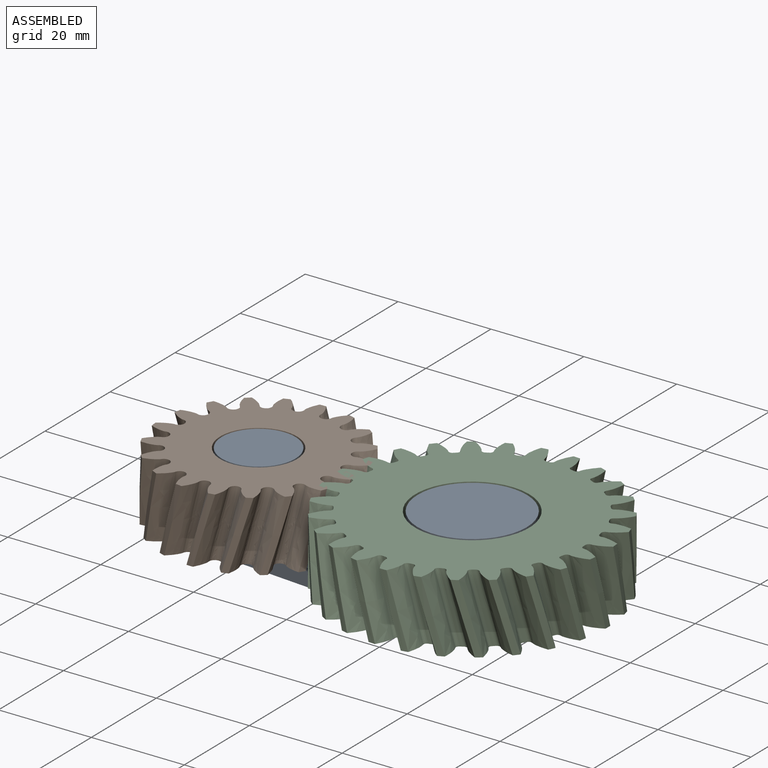
[diagram: assembled view]
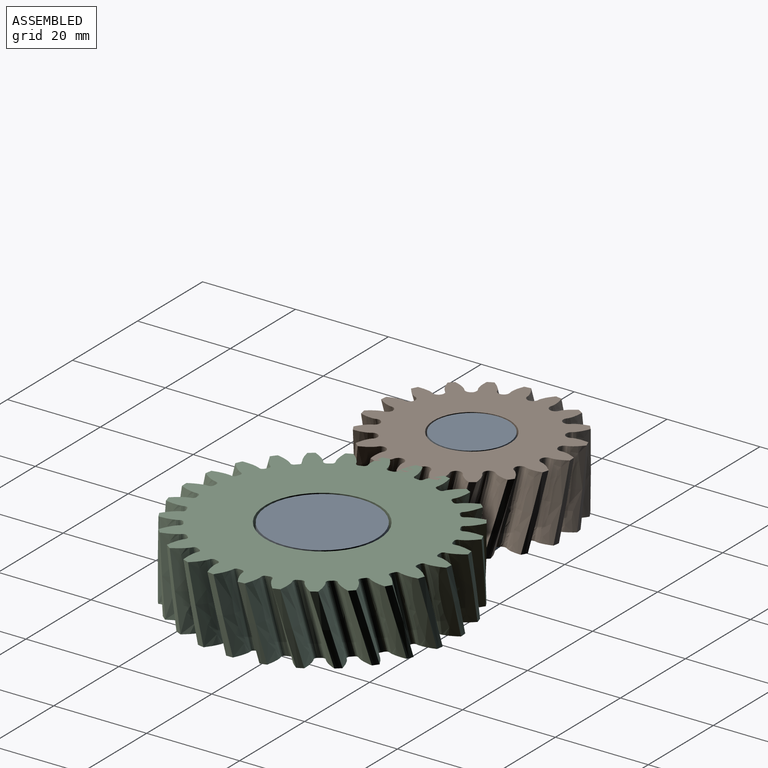
[diagram: assembled view, second angle]
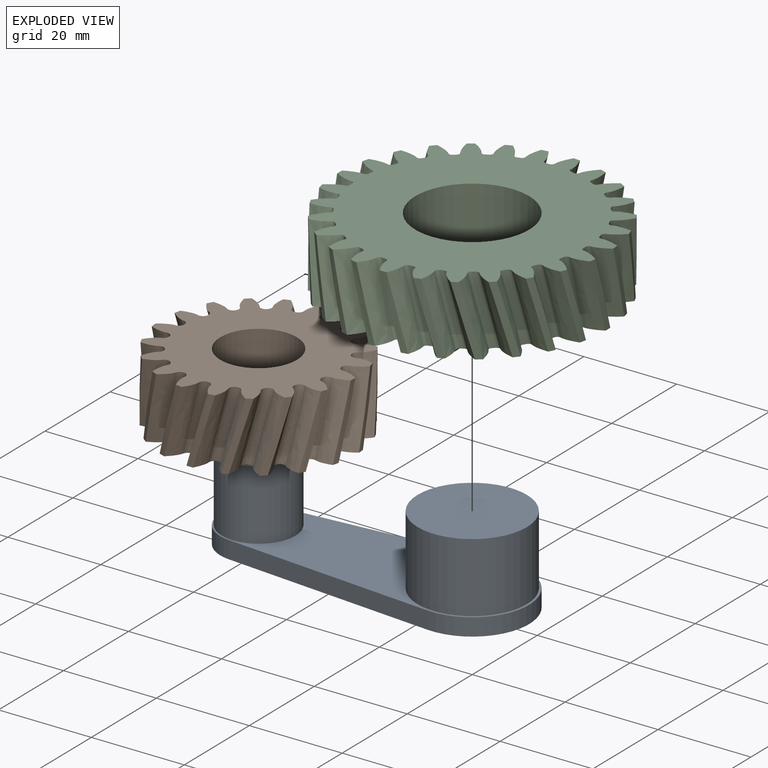
[diagram: exploded view]
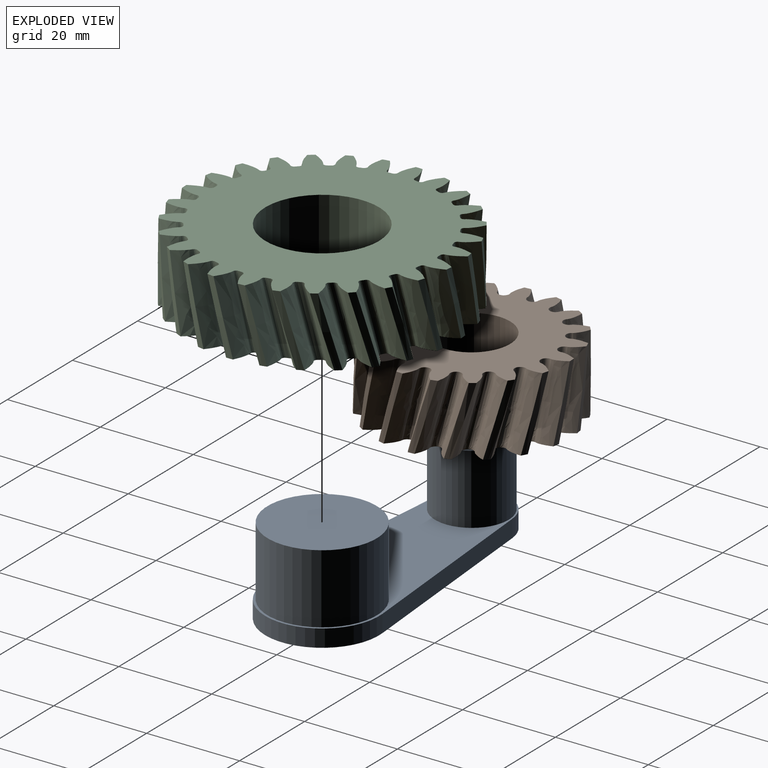
[diagram: exploded view, second angle]
ASSEMBLY  parts=3 mates=4
PART A: 10 faces, bbox 66.5x24.5x18.8 mm
  f0: cylinder r=7.92mm len=15.84mm, axis (0,0,-1), area 746.4mm2, adj f1,f9
  f1: plane 15.84x15.84mm, normal (0,0,1), area 197.1mm2, adj f0
  f2: cylinder r=11.76mm len=23.52mm, axis (0,0,-1), area 1108.4mm2, adj f3,f9
  f3: plane 23.52x23.52mm, normal (0,0,1), area 434.5mm2, adj f2
  f4: plane 45.65x3.99mm, normal (-0.09,-1,0), area 171.8mm2, adj f5,f7,f8,f9
  f5: cylinder r=12.25mm len=24.5mm, axis (0,0,1), area 152.3mm2, adj f4,f6,f8,f9
  f6: plane 45.65x3.99mm, normal (-0.09,1,0), area 171.8mm2, adj f5,f7,f8,f9
  f7: cylinder r=8.25mm len=16.44mm, axis (0,0,1), area 91.8mm2, adj f4,f6,f8,f9
  f8: plane 66.5x24.5mm, normal (0,0,-1), area 1289.2mm2, adj f4,f5,f6,f7
  f9: plane 66.5x24.5mm, normal (0,0,1), area 657.7mm2, adj f0,f2,f4,f5,f6,f7
PART B: 98 faces, bbox 42.3x42.3x17.2 mm
  f0: plane 41.99x41.86mm, normal (0,0,-1), area 900.9mm2, adj f2,f3,f4,f5,f6,f7,f8,f9
  f1: plane 41.97x41.95mm, normal (0,0,1), area 900.9mm2, adj f2,f3,f4,f5,f6,f7,f8,f9
  f2: bspline ~17.14x4.98mm, area 30.6mm2, adj f0,f1,f6,f93
  f3: bspline ~17.14x5.28mm, area 30.6mm2, adj f0,f1,f4,f7
  f4: bspline ~17.14x6.1mm, area 52.9mm2, adj f0,f1,f3,f5
  f5: bspline ~17.14x6.38mm, area 20.7mm2, adj f0,f1,f4,f6
  f6: bspline ~17.14x5.37mm, area 52.9mm2, adj f0,f1,f2,f5
  f7: bspline ~17.14x5.38mm, area 30.6mm2, adj f0,f1,f3,f11
  f8: bspline ~17.14x4.79mm, area 30.6mm2, adj f0,f1,f9,f12
  f9: bspline ~17.14x5.09mm, area 52.9mm2, adj f0,f1,f8,f10
  f10: bspline ~17.14x6.29mm, area 20.7mm2, adj f0,f1,f9,f11
  f11: bspline ~17.14x6.32mm, area 52.9mm2, adj f0,f1,f7,f10
  f12: bspline ~17.14x5.39mm, area 30.6mm2, adj f0,f1,f8,f16
  f13: bspline ~17.14x4.34mm, area 30.6mm2, adj f0,f1,f14,f17
  f14: bspline ~17.14x5.93mm, area 52.9mm2, adj f0,f1,f13,f15
  f15: bspline ~17.14x5.51mm, area 20.7mm2, adj f0,f1,f14,f16
  f16: bspline ~17.14x6.7mm, area 52.9mm2, adj f0,f1,f12,f15
  f17: bspline ~17.14x4.81mm, area 30.6mm2, adj f0,f1,f13,f21
  f18: bspline ~17.14x5.18mm, area 30.6mm2, adj f0,f1,f19,f22
  f19: bspline ~17.14x6.62mm, area 52.9mm2, adj f0,f1,f18,f20
  f20: bspline ~17.14x4.92mm, area 20.7mm2, adj f0,f1,f19,f21
  f21: bspline ~15x5.93mm, area 52.9mm2, adj f0,f1,f17,f20
  f22: bspline ~17.14x4.36mm, area 30.6mm2, adj f0,f1,f18,f26
  f23: bspline ~15x4.96mm, area 30.6mm2, adj f0,f1,f24,f27
  f24: bspline ~17.14x6.59mm, area 52.9mm2, adj f0,f1,f23,f25
  f25: bspline ~17.14x5.99mm, area 20.7mm2, adj f0,f1,f24,f26
  f26: bspline ~17.14x5.31mm, area 52.9mm2, adj f0,f1,f22,f25
  f27: bspline ~17.14x5.12mm, area 30.6mm2, adj f0,f1,f23,f31
  f28: bspline ~17.14x5.21mm, area 30.6mm2, adj f0,f1,f29,f32
  f29: bspline ~17.14x5.86mm, area 52.9mm2, adj f0,f1,f28,f30
  f30: bspline ~17.14x6.42mm, area 20.7mm2, adj f0,f1,f29,f31
  f31: bspline ~17.14x5.63mm, area 52.9mm2, adj f0,f1,f27,f30
  f32: bspline ~17.14x5.44mm, area 30.6mm2, adj f0,f1,f28,f36
  f33: bspline ~17.14x4.58mm, area 30.6mm2, adj f0,f1,f34,f37
  f34: bspline ~17.14x4.99mm, area 52.9mm2, adj f0,f1,f33,f35
  f35: bspline ~17.14x6.15mm, area 20.7mm2, adj f0,f1,f34,f36
  f36: bspline ~15x5.94mm, area 52.9mm2, adj f0,f1,f32,f35
  f37: bspline ~17.14x5.3mm, area 30.6mm2, adj f0,f1,f33,f41
  f38: bspline ~17.14x4.6mm, area 30.6mm2, adj f0,f1,f39,f42
  f39: bspline ~17.14x6.17mm, area 52.9mm2, adj f0,f1,f38,f40
  f40: bspline ~17.14x5.22mm, area 20.7mm2, adj f0,f1,f39,f41
  f41: bspline ~17.14x6.68mm, area 52.9mm2, adj f0,f1,f37,f40
  f42: bspline ~17.14x4.58mm, area 30.6mm2, adj f0,f1,f38,f46
  f43: bspline ~15x4.87mm, area 30.6mm2, adj f0,f1,f44,f47
  f44: bspline ~17.14x6.68mm, area 52.9mm2, adj f0,f1,f43,f45
  f45: bspline ~17.14x5.24mm, area 20.7mm2, adj f0,f1,f44,f46
  f46: bspline ~17.14x6.15mm, area 52.9mm2, adj f0,f1,f42,f45
  f47: bspline ~17.14x4.6mm, area 30.6mm2, adj f0,f1,f43,f51
  f48: bspline ~17.14x5.44mm, area 30.6mm2, adj f0,f1,f49,f52
  f49: bspline ~17.14x6.47mm, area 52.9mm2, adj f0,f1,f48,f50
  f50: bspline ~17.14x6.17mm, area 20.7mm2, adj f0,f1,f49,f51
  f51: bspline ~17.14x4.96mm, area 52.9mm2, adj f0,f1,f47,f50
  f52: bspline ~17.14x5.22mm, area 30.6mm2, adj f0,f1,f48,f56
  f53: bspline ~15x4.46mm, area 30.6mm2, adj f0,f1,f54,f57
  f54: bspline ~17.14x5.61mm, area 52.9mm2, adj f0,f1,f53,f55
  f55: bspline ~17.14x6.42mm, area 20.7mm2, adj f0,f1,f54,f56
  f56: bspline ~15x5.34mm, area 52.9mm2, adj f0,f1,f52,f55
  f57: bspline ~17.14x5.46mm, area 30.6mm2, adj f0,f1,f53,f61
  f58: bspline ~17.14x4.34mm, area 30.6mm2, adj f0,f1,f59,f62
  f59: bspline ~17.14x5.34mm, area 52.9mm2, adj f0,f1,f58,f60
  f60: bspline ~17.14x5.98mm, area 20.7mm2, adj f0,f1,f59,f61
  f61: bspline ~17.14x6.6mm, area 52.9mm2, adj f0,f1,f57,f60
  f62: bspline ~17.14x5.17mm, area 30.6mm2, adj f0,f1,f58,f66
  f63: bspline ~17.14x4.83mm, area 30.6mm2, adj f0,f1,f64,f67
  f64: bspline ~17.14x6.36mm, area 52.9mm2, adj f0,f1,f63,f65
  f65: bspline ~17.14x4.89mm, area 20.7mm2, adj f0,f1,f64,f66
  f66: bspline ~15x6.14mm, area 52.9mm2, adj f0,f1,f62,f65
  f67: bspline ~17.14x4.32mm, area 30.6mm2, adj f0,f1,f63,f71
  f68: bspline ~17.14x5.39mm, area 30.6mm2, adj f0,f1,f69,f72
  f69: bspline ~17.14x6.7mm, area 52.9mm2, adj f0,f1,f68,f70
  f70: bspline ~17.14x5.53mm, area 20.7mm2, adj f0,f1,f69,f71
  f71: bspline ~17.14x5.91mm, area 52.9mm2, adj f0,f1,f67,f70
  f72: bspline ~17.14x4.81mm, area 30.6mm2, adj f0,f1,f68,f76
  f73: bspline ~17.14x5.38mm, area 30.6mm2, adj f0,f1,f74,f77
  f74: bspline ~15x5.69mm, area 52.9mm2, adj f0,f1,f73,f75
  f75: bspline ~17.14x6.29mm, area 20.7mm2, adj f0,f1,f74,f76
  f76: bspline ~17.14x5.11mm, area 52.9mm2, adj f0,f1,f72,f75
  f77: bspline ~17.14x5.29mm, area 30.6mm2, adj f0,f1,f73,f81
  f78: bspline ~15x4.29mm, area 30.6mm2, adj f0,f1,f79,f82
  f79: bspline ~17.14x5.35mm, area 52.9mm2, adj f0,f1,f78,f80
  f80: bspline ~17.14x6.37mm, area 20.7mm2, adj f0,f1,f79,f81
  f81: bspline ~17.14x6.11mm, area 52.9mm2, adj f0,f1,f77,f80
  f82: bspline ~17.14x5.44mm, area 30.6mm2, adj f0,f1,f78,f86
  f83: bspline ~17.14x4.08mm, area 30.6mm2, adj f0,f1,f84,f87
  f84: bspline ~17.14x5.66mm, area 52.9mm2, adj f0,f1,f83,f85
  f85: bspline ~17.14x5.76mm, area 20.7mm2, adj f0,f1,f84,f86
  f86: bspline ~17.14x6.67mm, area 52.9mm2, adj f0,f1,f82,f85
  f87: bspline ~17.14x5.01mm, area 30.6mm2, adj f0,f1,f83,f91
  f88: bspline ~15x4.64mm, area 30.6mm2, adj f0,f1,f89,f92
  f89: bspline ~17.14x6.51mm, area 52.9mm2, adj f0,f1,f88,f90
  f90: bspline ~17.14x4.56mm, area 20.7mm2, adj f0,f1,f89,f91
  f91: bspline ~17.14x6.5mm, area 52.9mm2, adj f0,f1,f87,f90
  f92: bspline ~17.14x4.1mm, area 30.6mm2, adj f0,f1,f88,f96
  f93: bspline ~17.14x5.45mm, area 30.6mm2, adj f0,f1,f2,f94
  f94: bspline ~17.14x6.66mm, area 52.9mm2, adj f0,f1,f93,f95
  f95: bspline ~17.14x5.78mm, area 20.7mm2, adj f0,f1,f94,f96
  f96: bspline ~15x5.3mm, area 52.9mm2, adj f0,f1,f92,f95
  f97: cylinder r=8.25mm len=16.5mm, axis (0,0,-1), area 777.5mm2, adj f0,f1
PART C: 219 faces, bbox 58.3x58.4x25.2 mm
  f0: cylinder r=24.5mm len=15mm, axis (0,0,1), area 10.8mm2, adj f27,f28,f210,f216
  f1: cylinder r=24.5mm len=15mm, axis (0,0,1), area 10.8mm2, adj f27,f28,f203,f209
  f2: cylinder r=24.5mm len=15mm, axis (0,0,1), area 10.8mm2, adj f27,f28,f196,f202
  f3: cylinder r=24.5mm len=15mm, axis (0,0,1), area 10.8mm2, adj f27,f28,f189,f195
  f4: cylinder r=24.5mm len=15mm, axis (0,0,1), area 10.8mm2, adj f27,f28,f182,f188
  f5: cylinder r=24.5mm len=15mm, axis (0,0,1), area 10.8mm2, adj f27,f28,f175,f181
  f6: cylinder r=24.5mm len=15mm, axis (0,0,1), area 10.8mm2, adj f27,f28,f168,f174
  f7: cylinder r=24.5mm len=15mm, axis (0,0,1), area 10.8mm2, adj f27,f28,f161,f167
  f8: cylinder r=24.5mm len=15mm, axis (0,0,1), area 10.8mm2, adj f27,f28,f154,f160
  f9: cylinder r=24.5mm len=15mm, axis (0,0,1), area 10.8mm2, adj f27,f28,f147,f153
  f10: cylinder r=24.5mm len=15mm, axis (0,0,1), area 10.8mm2, adj f27,f28,f140,f146
  f11: cylinder r=24.5mm len=15mm, axis (0,0,1), area 10.8mm2, adj f27,f28,f133,f139
  f12: cylinder r=24.5mm len=15mm, axis (0,0,1), area 10.8mm2, adj f27,f28,f126,f132
  f13: cylinder r=24.5mm len=15mm, axis (0,0,1), area 10.8mm2, adj f27,f28,f119,f125
  f14: cylinder r=24.5mm len=15mm, axis (0,0,1), area 10.8mm2, adj f27,f28,f112,f118
  f15: cylinder r=24.5mm len=15mm, axis (0,0,1), area 10.8mm2, adj f27,f28,f105,f111
  f16: cylinder r=24.5mm len=15mm, axis (0,0,1), area 10.8mm2, adj f27,f28,f98,f104
  f17: cylinder r=24.5mm len=15mm, axis (0,0,1), area 10.8mm2, adj f27,f28,f91,f97
  f18: cylinder r=24.5mm len=15mm, axis (0,0,1), area 10.8mm2, adj f27,f28,f84,f90
  f19: cylinder r=24.5mm len=15mm, axis (0,0,1), area 10.8mm2, adj f27,f28,f77,f83
  f20: cylinder r=24.5mm len=15mm, axis (0,0,1), area 10.8mm2, adj f27,f28,f70,f76
  f21: cylinder r=24.5mm len=15mm, axis (0,0,1), area 10.8mm2, adj f27,f28,f63,f69
  f22: cylinder r=24.5mm len=15mm, axis (0,0,1), area 10.8mm2, adj f27,f28,f56,f62
  f23: cylinder r=24.5mm len=15mm, axis (0,0,1), area 10.8mm2, adj f27,f28,f49,f55
  f24: cylinder r=24.5mm len=15mm, axis (0,0,1), area 10.8mm2, adj f27,f28,f42,f48
  f25: cylinder r=24.5mm len=15mm, axis (0,0,1), area 10.8mm2, adj f27,f28,f35,f41
  f26: cylinder r=24.5mm len=15mm, axis (0,0,1), area 10.8mm2, adj f27,f28,f34,f217
  f27: plane 58.02x58.01mm, normal (0,0,1), area 1787.9mm2, adj f0,f1,f2,f3,f4,f5,f6,f7
  f28: plane 58.04x57.95mm, normal (0,0,-1), area 1788mm2, adj f0,f1,f2,f3,f4,f5,f6,f7
  f29: bspline ~21.1x6.03mm, area 60.1mm2, adj f27,f28,f30,f33
  f30: bspline ~21.1x7.33mm, area 21.8mm2, adj f27,f28,f29,f31
  f31: bspline ~21.1x7.49mm, area 60.1mm2, adj f27,f28,f30,f32
  f32: bspline ~15x3.75mm, area 2.8mm2, adj f27,f28,f31,f34
  f33: bspline ~15x3.68mm, area 2.8mm2, adj f27,f28,f29,f35
  f34: bspline ~22.58x6.22mm, area 16.7mm2, adj f26,f27,f28,f32
  f35: bspline ~22.58x5.84mm, area 16.7mm2, adj f25,f27,f28,f33
  f36: bspline ~21.1x6.52mm, area 60.1mm2, adj f27,f28,f37,f40
  f37: bspline ~21.1x6.75mm, area 21.8mm2, adj f27,f28,f36,f38
  f38: bspline ~21.1x7.83mm, area 60.1mm2, adj f27,f28,f37,f39
  f39: bspline ~15x3.59mm, area 2.8mm2, adj f27,f28,f38,f41
  f40: bspline ~15x3.39mm, area 2.8mm2, adj f27,f28,f36,f42
  f41: bspline ~23.04x6.17mm, area 16.7mm2, adj f25,f27,f28,f39
  f42: bspline ~22.58x5.29mm, area 16.7mm2, adj f24,f27,f28,f40
  f43: bspline ~21.1x7.35mm, area 60.1mm2, adj f27,f28,f44,f47
  f44: bspline ~21.1x5.81mm, area 21.8mm2, adj f27,f28,f43,f45
  f45: bspline ~21.1x7.75mm, area 60.1mm2, adj f27,f28,f44,f46
  f46: bspline ~22.16x21.1mm, area 2.8mm2, adj f27,f28,f45,f48
  f47: bspline ~15x2.92mm, area 2.8mm2, adj f27,f28,f43,f49
  f48: bspline ~23.1x5.68mm, area 16.7mm2, adj f24,f27,f28,f46
  f49: bspline ~22.58x4.73mm, area 16.7mm2, adj f23,f27,f28,f47
  f50: bspline ~21.1x7.79mm, area 60.1mm2, adj f27,f28,f51,f54
  f51: bspline ~21.1x5.97mm, area 21.8mm2, adj f27,f28,f50,f52
  f52: bspline ~21.1x7.25mm, area 60.1mm2, adj f27,f28,f51,f53
  f53: bspline ~15x2.86mm, area 2.8mm2, adj f27,f28,f52,f55
  f54: bspline ~15x3.19mm, area 2.8mm2, adj f27,f28,f50,f56
  f55: bspline ~23.13x4.88mm, area 16.7mm2, adj f23,f27,f28,f53
  f56: bspline ~22.58x5.53mm, area 16.7mm2, adj f22,f27,f28,f54
  f57: bspline ~15x6.33mm, area 60.1mm2, adj f27,f28,f58,f61
  f58: bspline ~21.1x6.86mm, area 21.8mm2, adj f27,f28,f57,f59
  f59: bspline ~21.1x6.36mm, area 60.1mm2, adj f27,f28,f58,f60
  f60: bspline ~23.49x21.1mm, area 2.8mm2, adj f27,f28,f59,f62
  f61: bspline ~24.64x21.1mm, area 2.8mm2, adj f27,f28,f57,f63
  f62: bspline ~23.1x5.35mm, area 16.7mm2, adj f22,f27,f28,f60
  f63: bspline ~22.58x6.04mm, area 16.7mm2, adj f21,f27,f28,f61
  f64: bspline ~21.1x7.41mm, area 60.1mm2, adj f27,f28,f65,f68
  f65: bspline ~21.1x7.38mm, area 21.8mm2, adj f27,f28,f64,f66
  f66: bspline ~15x4.89mm, area 60.1mm2, adj f27,f28,f65,f67
  f67: bspline ~25.07x21.1mm, area 2.8mm2, adj f27,f28,f66,f69
  f68: bspline ~25.37x21.1mm, area 2.8mm2, adj f27,f28,f64,f70
  f69: bspline ~22.98x5.91mm, area 16.7mm2, adj f21,f27,f28,f67
  f70: bspline ~22.58x6.22mm, area 16.7mm2, adj f20,f27,f28,f68
  f71: bspline ~21.1x6.65mm, area 60.1mm2, adj f27,f28,f72,f75
  f72: bspline ~21.1x7.5mm, area 21.8mm2, adj f27,f28,f71,f73
  f73: bspline ~21.1x6.98mm, area 60.1mm2, adj f27,f28,f72,f74
  f74: bspline ~25.5x21.1mm, area 2.8mm2, adj f27,f28,f73,f76
  f75: bspline ~15x3.76mm, area 2.8mm2, adj f27,f28,f71,f77
  f76: bspline ~22.8x6.17mm, area 16.7mm2, adj f20,f27,f28,f74
  f77: bspline ~22.58x6.06mm, area 16.7mm2, adj f19,f27,f28,f75
  f78: bspline ~21.1x5.85mm, area 60.1mm2, adj f27,f28,f79,f82
  f79: bspline ~21.1x7.22mm, area 21.8mm2, adj f27,f28,f78,f80
  f80: bspline ~21.1x7.62mm, area 60.1mm2, adj f27,f28,f79,f81
  f81: bspline ~25.24x21.1mm, area 2.8mm2, adj f27,f28,f80,f83
  f82: bspline ~24.6x21.1mm, area 2.8mm2, adj f27,f28,f78,f84
  f83: bspline ~22.92x6.29mm, area 16.7mm2, adj f19,f27,f28,f81
  f84: bspline ~22.58x5.73mm, area 16.7mm2, adj f18,f27,f28,f82
  f85: bspline ~21.1x6.76mm, area 60.1mm2, adj f27,f28,f86,f89
  f86: bspline ~21.1x6.55mm, area 21.8mm2, adj f27,f28,f85,f87
  f87: bspline ~21.1x7.85mm, area 60.1mm2, adj f27,f28,f86,f88
  f88: bspline ~15x3.52mm, area 2.8mm2, adj f27,f28,f87,f90
  f89: bspline ~22.5x21.1mm, area 2.8mm2, adj f27,f28,f85,f91
  f90: bspline ~23.07x6.08mm, area 16.7mm2, adj f18,f27,f28,f88
  f91: bspline ~22.58x5.1mm, area 16.7mm2, adj f17,f27,f28,f89
  f92: bspline ~21.1x7.5mm, area 60.1mm2, adj f27,f28,f93,f96
  f93: bspline ~21.1x5.52mm, area 21.8mm2, adj f27,f28,f92,f94
  f94: bspline ~21.1x7.66mm, area 60.1mm2, adj f27,f28,f93,f95
  f95: bspline ~21.4x21.1mm, area 2.8mm2, adj f27,f28,f94,f97
  f96: bspline ~21.1x20.22mm, area 2.8mm2, adj f27,f28,f92,f98
  f97: bspline ~23.1x5.51mm, area 16.7mm2, adj f17,f27,f28,f95
  f98: bspline ~22.58x4.95mm, area 16.7mm2, adj f16,f27,f28,f96
  f99: bspline ~21.1x7.83mm, area 60.1mm2, adj f27,f28,f100,f103
  f100: bspline ~21.1x6.22mm, area 21.8mm2, adj f27,f28,f99,f101
  f101: bspline ~21.1x7.06mm, area 60.1mm2, adj f27,f28,f100,f102
  f102: bspline ~21.47x21.1mm, area 2.8mm2, adj f27,f28,f101,f104
  f103: bspline ~23.21x21.1mm, area 2.8mm2, adj f27,f28,f99,f105
  f104: bspline ~23.13x4.77mm, area 16.7mm2, adj f16,f27,f28,f102
  f105: bspline ~22.58x5.69mm, area 16.7mm2, adj f15,f27,f28,f103
  f106: bspline ~15x6.24mm, area 60.1mm2, adj f27,f28,f107,f110
  f107: bspline ~21.1x7.02mm, area 21.8mm2, adj f27,f28,f106,f108
  f108: bspline ~21.1x6.08mm, area 60.1mm2, adj f27,f28,f107,f109
  f109: bspline ~15x3.44mm, area 2.8mm2, adj f27,f28,f108,f111
  f110: bspline ~24.95x21.1mm, area 2.8mm2, adj f27,f28,f106,f112
  f111: bspline ~23.08x5.52mm, area 16.7mm2, adj f15,f27,f28,f109
  f112: bspline ~22.58x6.11mm, area 16.7mm2, adj f14,f27,f28,f110
  f113: bspline ~21.1x7.24mm, area 60.1mm2, adj f27,f28,f114,f117
  f114: bspline ~21.1x7.45mm, area 21.8mm2, adj f27,f28,f113,f115
  f115: bspline ~21.1x6.36mm, area 60.1mm2, adj f27,f28,f114,f116
  f116: bspline ~25.25x21.1mm, area 2.8mm2, adj f27,f28,f115,f118
  f117: bspline ~25.47x21.1mm, area 2.8mm2, adj f27,f28,f113,f119
  f118: bspline ~22.94x6mm, area 16.7mm2, adj f14,f27,f28,f116
  f119: bspline ~22.58x6.21mm, area 16.7mm2, adj f13,f27,f28,f117
  f120: bspline ~21.1x6.44mm, area 60.1mm2, adj f27,f28,f121,f124
  f121: bspline ~21.1x7.47mm, area 21.8mm2, adj f27,f28,f120,f122
  f122: bspline ~21.1x7.17mm, area 60.1mm2, adj f27,f28,f121,f123
  f123: bspline ~25.5x21.1mm, area 2.8mm2, adj f27,f28,f122,f125
  f124: bspline ~25.3x21.1mm, area 2.8mm2, adj f27,f28,f120,f126
  f125: bspline ~22.81x6.23mm, area 16.7mm2, adj f13,f27,f28,f123
  f126: bspline ~22.58x6.01mm, area 16.7mm2, adj f12,f27,f28,f124
  f127: bspline ~21.1x5.96mm, area 60.1mm2, adj f27,f28,f128,f131
  f128: bspline ~21.1x7.08mm, area 21.8mm2, adj f27,f28,f127,f129
  f129: bspline ~21.1x7.71mm, area 60.1mm2, adj f27,f28,f128,f130
  f130: bspline ~25.05x21.1mm, area 2.8mm2, adj f27,f28,f129,f132
  f131: bspline ~24.19x21.1mm, area 2.8mm2, adj f27,f28,f127,f133
  f132: bspline ~22.97x6.27mm, area 16.7mm2, adj f12,f27,f28,f130
  f133: bspline ~22.58x5.6mm, area 16.7mm2, adj f11,f27,f28,f131
  f134: bspline ~21.1x6.98mm, area 60.1mm2, adj f27,f28,f135,f138
  f135: bspline ~21.1x6.32mm, area 21.8mm2, adj f27,f28,f134,f136
  f136: bspline ~21.1x7.84mm, area 60.1mm2, adj f27,f28,f135,f137
  f137: bspline ~23.44x21.1mm, area 2.8mm2, adj f27,f28,f136,f139
  f138: bspline ~21.78x21.1mm, area 2.8mm2, adj f27,f28,f134,f140
  f139: bspline ~23.09x5.97mm, area 16.7mm2, adj f11,f27,f28,f137
  f140: bspline ~22.58x4.9mm, area 16.7mm2, adj f10,f27,f28,f138
  f141: bspline ~21.1x7.62mm, area 60.1mm2, adj f27,f28,f142,f145
  f142: bspline ~21.1x5.4mm, area 21.8mm2, adj f27,f28,f141,f143
  f143: bspline ~21.1x7.55mm, area 60.1mm2, adj f27,f28,f142,f144
  f144: bspline ~15x2.99mm, area 2.8mm2, adj f27,f28,f143,f146
  f145: bspline ~15x2.93mm, area 2.8mm2, adj f27,f28,f141,f147
  f146: bspline ~23.11x5.32mm, area 16.7mm2, adj f10,f27,f28,f144
  f147: bspline ~22.58x5.16mm, area 16.7mm2, adj f9,f27,f28,f145
  f148: bspline ~21.1x7.85mm, area 60.1mm2, adj f27,f28,f149,f152
  f149: bspline ~21.1x6.46mm, area 21.8mm2, adj f27,f28,f148,f150
  f150: bspline ~15x6.03mm, area 60.1mm2, adj f27,f28,f149,f151
  f151: bspline ~15x3.13mm, area 2.8mm2, adj f27,f28,f150,f153
  f152: bspline ~23.77x21.1mm, area 2.8mm2, adj f27,f28,f148,f154
  f153: bspline ~23.13x4.95mm, area 16.7mm2, adj f9,f27,f28,f151
  f154: bspline ~22.58x5.82mm, area 16.7mm2, adj f8,f27,f28,f152
  f155: bspline ~15x6.14mm, area 60.1mm2, adj f27,f28,f156,f159
  f156: bspline ~21.1x7.17mm, area 21.8mm2, adj f27,f28,f155,f157
  f157: bspline ~21.1x5.78mm, area 60.1mm2, adj f27,f28,f156,f158
  f158: bspline ~24.45x21.1mm, area 2.8mm2, adj f27,f28,f157,f160
  f159: bspline ~25.17x21.1mm, area 2.8mm2, adj f27,f28,f155,f161
  f160: bspline ~23.05x5.67mm, area 16.7mm2, adj f8,f27,f28,f158
  f161: bspline ~22.58x6.17mm, area 16.7mm2, adj f7,f27,f28,f159
  f162: bspline ~21.1x7.06mm, area 60.1mm2, adj f27,f28,f163,f166
  f163: bspline ~21.1x7.49mm, area 21.8mm2, adj f27,f28,f162,f164
  f164: bspline ~21.1x6.57mm, area 60.1mm2, adj f27,f28,f163,f165
  f165: bspline ~25.35x21.1mm, area 2.8mm2, adj f27,f28,f164,f167
  f166: bspline ~25.51x21.1mm, area 2.8mm2, adj f27,f28,f162,f168
  f167: bspline ~22.89x6.06mm, area 16.7mm2, adj f7,f27,f28,f165
  f168: bspline ~22.58x6.18mm, area 16.7mm2, adj f6,f27,f28,f166
  f169: bspline ~21.1x6.23mm, area 60.1mm2, adj f27,f28,f170,f173
  f170: bspline ~21.1x7.41mm, area 21.8mm2, adj f27,f28,f169,f171
  f171: bspline ~15x5.62mm, area 60.1mm2, adj f27,f28,f170,f172
  f172: bspline ~25.41x21.1mm, area 2.8mm2, adj f27,f28,f171,f174
  f173: bspline ~25.15x21.1mm, area 2.8mm2, adj f27,f28,f169,f175
  f174: bspline ~22.81x6.26mm, area 16.7mm2, adj f6,f27,f28,f172
  f175: bspline ~22.58x5.94mm, area 16.7mm2, adj f5,f27,f28,f173
  f176: bspline ~21.1x6.25mm, area 60.1mm2, adj f27,f28,f177,f180
  f177: bspline ~21.1x6.93mm, area 21.8mm2, adj f27,f28,f176,f178
  f178: bspline ~21.1x7.79mm, area 60.1mm2, adj f27,f28,f177,f179
  f179: bspline ~15x3.65mm, area 2.8mm2, adj f27,f28,f178,f181
  f180: bspline ~15x3.48mm, area 2.8mm2, adj f27,f28,f176,f182
  f181: bspline ~23.01x6.23mm, area 16.7mm2, adj f5,f27,f28,f179
  f182: bspline ~22.58x5.45mm, area 16.7mm2, adj f4,f27,f28,f180
  f183: bspline ~15x6.1mm, area 60.1mm2, adj f27,f28,f184,f187
  f184: bspline ~21.1x6.07mm, area 21.8mm2, adj f27,f28,f183,f185
  f185: bspline ~21.1x7.81mm, area 60.1mm2, adj f27,f28,f184,f186
  f186: bspline ~15x3.34mm, area 2.8mm2, adj f27,f28,f185,f188
  f187: bspline ~15x3.06mm, area 2.8mm2, adj f27,f28,f183,f189
  f188: bspline ~23.1x5.84mm, area 16.7mm2, adj f4,f27,f28,f186
  f189: bspline ~22.58x4.71mm, area 16.7mm2, adj f3,f27,f28,f187
  f190: bspline ~15x6.42mm, area 60.1mm2, adj f27,f28,f191,f194
  f191: bspline ~21.1x5.69mm, area 21.8mm2, adj f27,f28,f190,f192
  f192: bspline ~15x6.33mm, area 60.1mm2, adj f27,f28,f191,f193
  f193: bspline ~21.1x19.76mm, area 2.8mm2, adj f27,f28,f192,f195
  f194: bspline ~21.87x21.1mm, area 2.8mm2, adj f27,f28,f190,f196
  f195: bspline ~23.12x5.11mm, area 16.7mm2, adj f3,f27,f28,f193
  f196: bspline ~22.58x5.36mm, area 16.7mm2, adj f2,f27,f28,f194
  f197: bspline ~21.1x7.84mm, area 60.1mm2, adj f27,f28,f198,f201
  f198: bspline ~21.1x6.67mm, area 21.8mm2, adj f27,f28,f197,f199
  f199: bspline ~21.1x6.62mm, area 60.1mm2, adj f27,f28,f198,f200
  f200: bspline ~22.9x21.1mm, area 2.8mm2, adj f27,f28,f199,f202
  f201: bspline ~15x3.49mm, area 2.8mm2, adj f27,f28,f197,f203
  f202: bspline ~23.12x5.16mm, area 16.7mm2, adj f2,f27,f28,f200
  f203: bspline ~24.07x6.28mm, area 16.7mm2, adj f1,f27,f28,f201
  f204: bspline ~15x6.01mm, area 60.1mm2, adj f27,f28,f205,f208
  f205: bspline ~21.1x7.28mm, area 21.8mm2, adj f27,f28,f204,f206
  f206: bspline ~21.1x5.96mm, area 60.1mm2, adj f27,f28,f205,f207
  f207: bspline ~24.8x21.1mm, area 2.8mm2, adj f27,f28,f206,f209
  f208: bspline ~25.32x21.1mm, area 2.8mm2, adj f27,f28,f204,f210
  f209: bspline ~23.02x5.8mm, area 16.7mm2, adj f1,f27,f28,f207
  f210: bspline ~22.46x6.17mm, area 16.7mm2, adj f0,f27,f28,f208
  f211: bspline ~15x5.32mm, area 60.1mm2, adj f27,f28,f212,f215
  f212: bspline ~21.1x7.51mm, area 21.8mm2, adj f27,f28,f211,f213
  f213: bspline ~21.1x6.78mm, area 60.1mm2, adj f27,f28,f212,f214
  f214: bspline ~25.42x21.1mm, area 2.8mm2, adj f27,f28,f213,f216
  f215: bspline ~25.46x21.1mm, area 2.8mm2, adj f27,f28,f211,f217
  f216: bspline ~22.84x6.11mm, area 16.7mm2, adj f0,f27,f28,f214
  f217: bspline ~22.8x6.2mm, area 16.7mm2, adj f26,f27,f28,f215
  f218: cylinder r=12.25mm len=24.5mm, axis (0,0,-1), area 1154.5mm2, adj f27,f28
PLACE A at identity fixed
PLACE B rot(axis=(0,0,1),118deg) t=(0,0,0)mm
PLACE C rot(axis=(0,0,1),80.7deg) t=(38.53,-45.39,0)mm
MATE revolute A.f2 <-> C.f218  axis (0,0,-1) through (46,0,7.5)mm
MATE revolute B.f97 <-> A.f0  axis (0,0,-1) through (0,0,7.5)mm
MATE planar B.f97 <-> A.f9  axis (0,0,-1) through (0,0,0)mm
MATE planar A.f9 <-> C.f0  axis (0,0,1) through (22.65,0,0)mm
